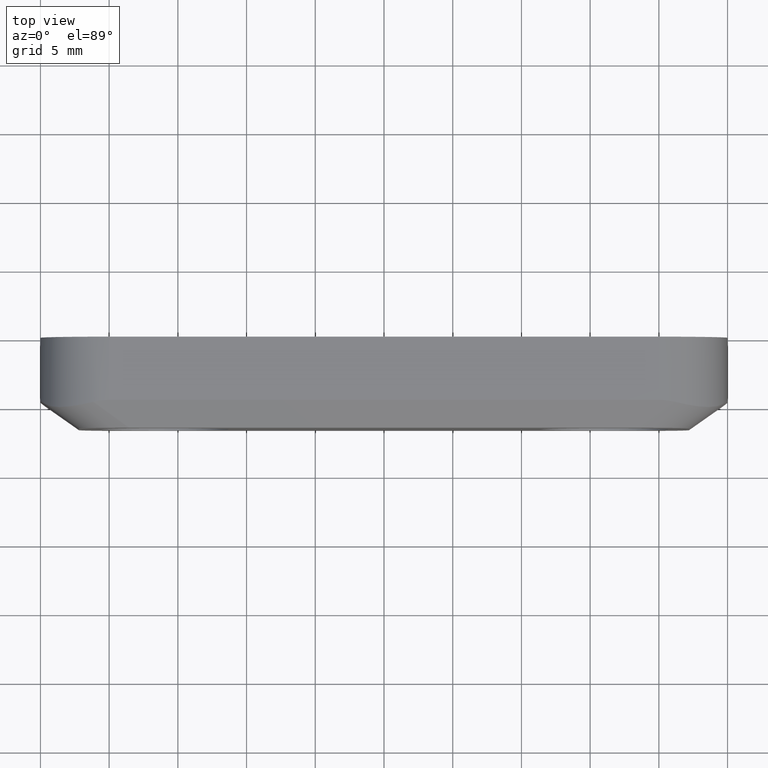
[diagram: clean part render]
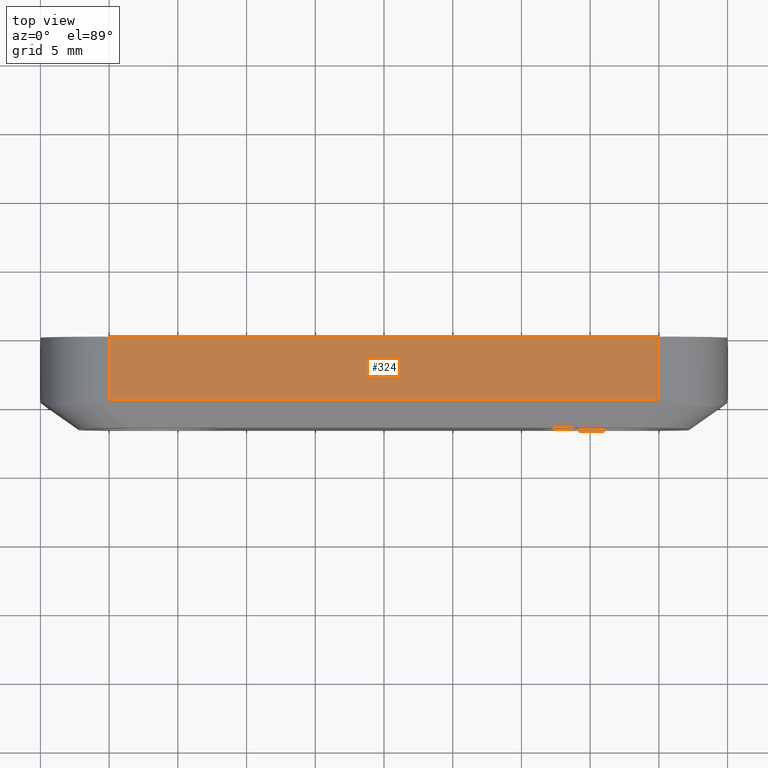
[diagram: same view with one face highlighted and labeled with its STEP entity id]
A machine part, top view. The second image highlights one B-rep face of the part: STEP entity #324.
In plain terms, the highlighted planar face has unit normal (0, 0, -1).
Its self-contained STEP definition (entity closure, byte-faithful):
#10 = CARTESIAN_POINT ( 'NONE',  ( -19.99999999998694700, 0.0000000000000000000, 8.500000000000110100 ) ) ;
#27 = EDGE_CURVE ( 'NONE', #838, #317, #744, .T. ) ;
#38 = ORIENTED_EDGE ( 'NONE', *, *, #741, .T. ) ;
#122 = VECTOR ( 'NONE', #459, 1000.000000000000000 ) ;
#145 = VECTOR ( 'NONE', #747, 1000.000000000000000 ) ;
#173 = DIRECTION ( 'NONE',  ( 0.0000000000000000000, 0.0000000000000000000, -1.000000000000000000 ) ) ;
#199 = ORIENTED_EDGE ( 'NONE', *, *, #651, .T. ) ;
#224 = FACE_OUTER_BOUND ( 'NONE', #553, .T. ) ;
#293 = PLANE ( 'NONE',  #760 ) ;
#317 = VERTEX_POINT ( 'NONE', #10 ) ;
#324 = ADVANCED_FACE ( 'NONE', ( #224 ), #293, .F. ) ;
#361 = DIRECTION ( 'NONE',  ( -1.000000000000000000, 0.0000000000000000000, 0.0000000000000000000 ) ) ;
#370 = VECTOR ( 'NONE', #710, 1000.000000000000000 ) ;
#397 = ORIENTED_EDGE ( 'NONE', *, *, #27, .T. ) ;
#459 = DIRECTION ( 'NONE',  ( -1.000000000000000000, -0.0000000000000000000, -0.0000000000000000000 ) ) ;
#474 = EDGE_CURVE ( 'NONE', #875, #570, #970, .T. ) ;
#551 = CARTESIAN_POINT ( 'NONE',  ( 19.99999999998770100, -4.599999999999999600, 8.500000000000110100 ) ) ;
#553 = EDGE_LOOP ( 'NONE', ( #788, #38, #397, #199 ) ) ;
#561 = VECTOR ( 'NONE', #629, 1000.000000000000000 ) ;
#570 = VERTEX_POINT ( 'NONE', #551 ) ;
#629 = DIRECTION ( 'NONE',  ( 0.0000000000000000000, 1.000000000000000000, 0.0000000000000000000 ) ) ;
#651 = EDGE_CURVE ( 'NONE', #317, #875, #1001, .T. ) ;
#673 = CARTESIAN_POINT ( 'NONE',  ( -19.99999999998694700, -4.599999999999999600, 8.500000000000110100 ) ) ;
#710 = DIRECTION ( 'NONE',  ( -0.0000000000000000000, -1.000000000000000000, -0.0000000000000000000 ) ) ;
#718 = CARTESIAN_POINT ( 'NONE',  ( 19.99999999998770100, -1000.000000000000000, 8.500000000000110100 ) ) ;
#741 = EDGE_CURVE ( 'NONE', #570, #838, #769, .T. ) ;
#744 = LINE ( 'NONE', #997, #122 ) ;
#747 = DIRECTION ( 'NONE',  ( 1.000000000000000000, 0.0000000000000000000, 0.0000000000000000000 ) ) ;
#760 = AXIS2_PLACEMENT_3D ( 'NONE', #882, #173, #361 ) ;
#769 = LINE ( 'NONE', #718, #561 ) ;
#787 = CARTESIAN_POINT ( 'NONE',  ( -19.99999999998694700, -1000.000000000000000, 8.500000000000110100 ) ) ;
#788 = ORIENTED_EDGE ( 'NONE', *, *, #474, .T. ) ;
#838 = VERTEX_POINT ( 'NONE', #978 ) ;
#875 = VERTEX_POINT ( 'NONE', #673 ) ;
#882 = CARTESIAN_POINT ( 'NONE',  ( 24.99999999998645000, -1000.000000000000000, 8.500000000000110100 ) ) ;
#897 = CARTESIAN_POINT ( 'NONE',  ( 24.99999999998645000, -4.599999999999999600, 8.500000000000110100 ) ) ;
#970 = LINE ( 'NONE', #897, #145 ) ;
#978 = CARTESIAN_POINT ( 'NONE',  ( 19.99999999998770100, 0.0000000000000000000, 8.500000000000110100 ) ) ;
#997 = CARTESIAN_POINT ( 'NONE',  ( 24.99999999998645000, 0.0000000000000000000, 8.500000000000110100 ) ) ;
#1001 = LINE ( 'NONE', #787, #370 ) ;